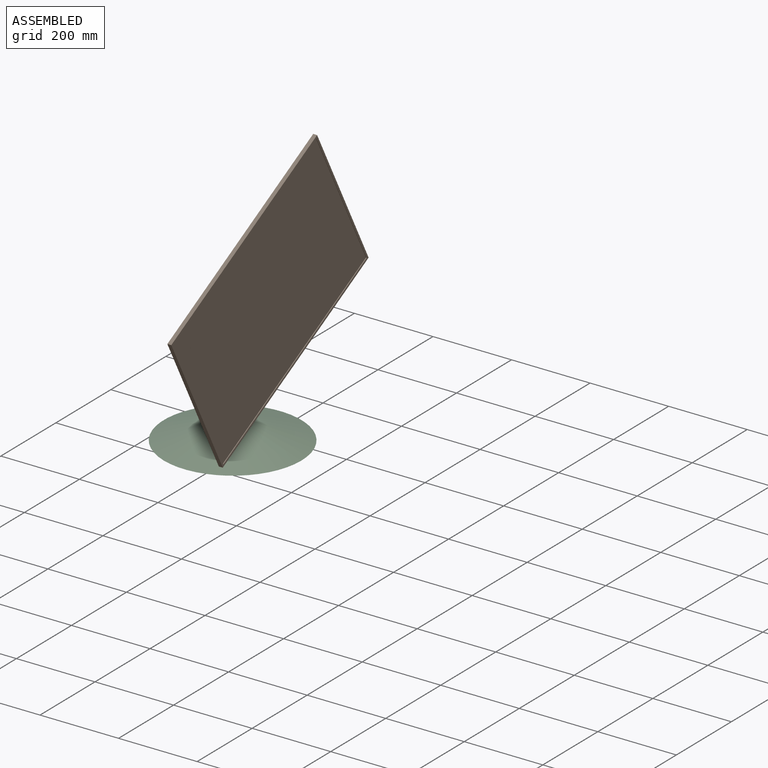
[diagram: assembled view]
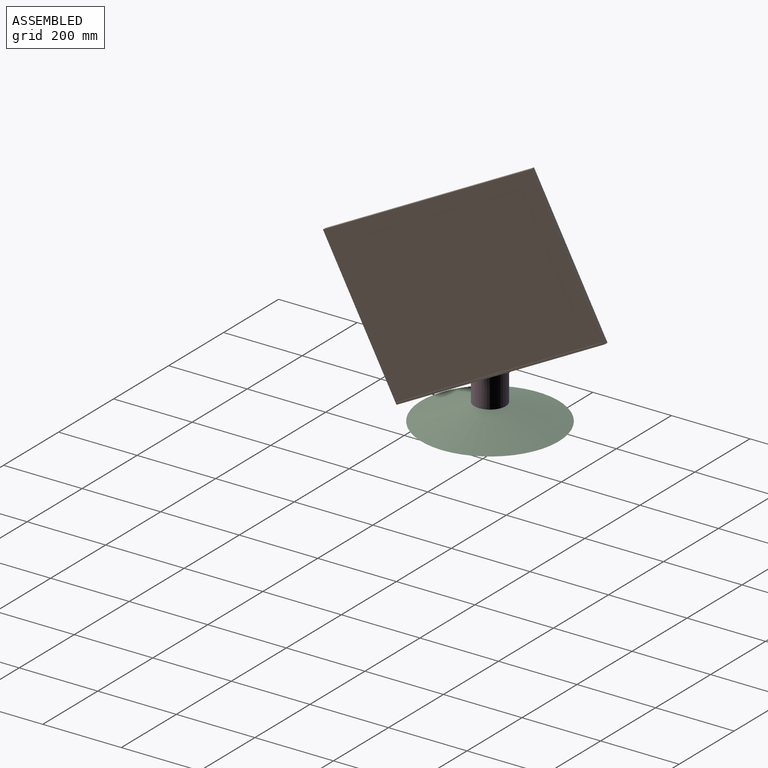
[diagram: assembled view, second angle]
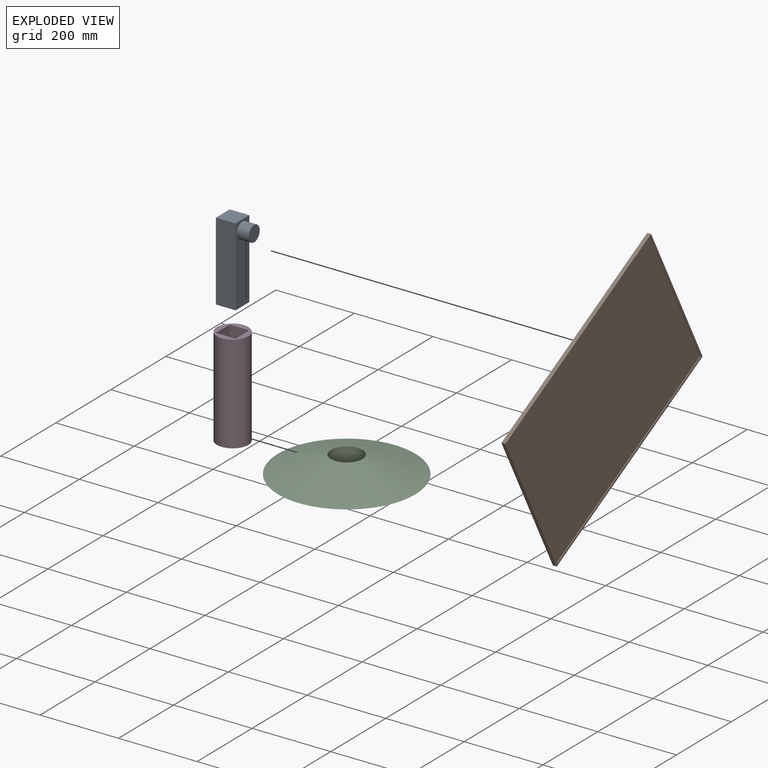
[diagram: exploded view]
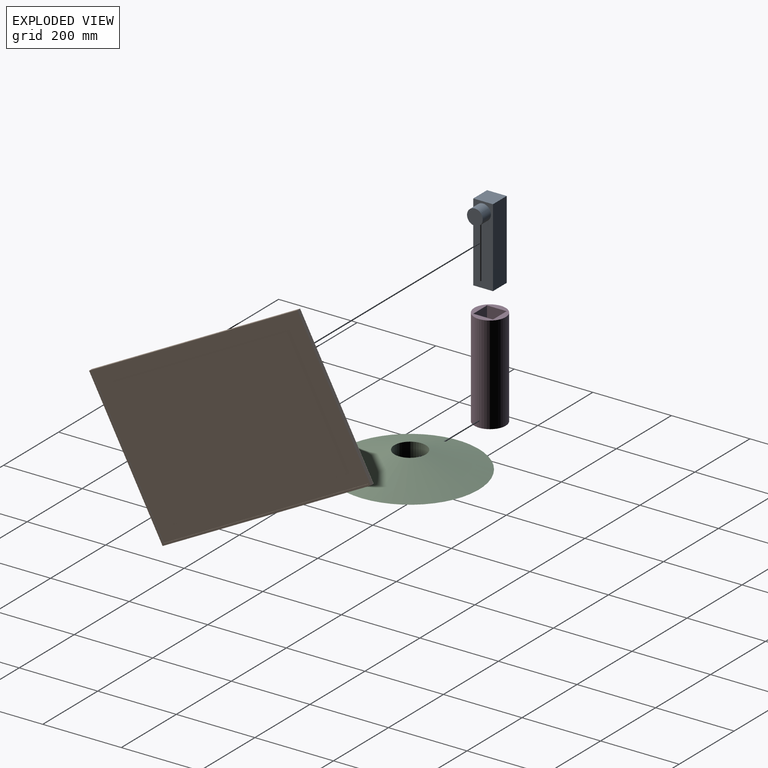
[diagram: exploded view, second angle]
ASSEMBLY  parts=4 mates=3
PART A: 15 faces, bbox 50x80x200 mm
  f0: plane 50x50mm, normal (0,0,-1), area 475mm2, adj f1,f2,f3,f4,f8,f9,f10,f11
  f1: plane 200x50mm, normal (0,1,0), area 10000mm2, adj f0,f2,f4,f5
  f2: plane 200x50mm, normal (-1,0,0), area 10000mm2, adj f0,f1,f3,f5
  f3: plane 200x50mm, normal (0,-1,0), area 8743.4mm2, adj f0,f2,f4,f5,f6
  f4: plane 200x50mm, normal (1,0,0), area 10000mm2, adj f0,f1,f3,f5
  f5: plane 50x50mm, normal (0,0,1), area 2500mm2, adj f1,f2,f3,f4
  f6: cylinder r=20mm len=40mm, axis (0,1,0), area 3769.9mm2, adj f3,f7
  f7: plane 40x40mm, normal (0,-1,0), area 1256.6mm2, adj f6
  f8: plane 197.5x45mm, normal (0,-1,0), area 8887.5mm2, adj f0,f9,f11,f12
  f9: plane 197.5x45mm, normal (1,0,0), area 8887.5mm2, adj f0,f8,f10,f12
  f10: plane 197.5x45mm, normal (0,1,0), area 7925.4mm2, adj f0,f9,f11,f12,f13
  f11: plane 197.5x45mm, normal (-1,0,0), area 8887.5mm2, adj f0,f8,f10,f12
  f12: plane 45x45mm, normal (0,0,-1), area 2025mm2, adj f8,f9,f10,f11
  f13: cylinder r=17.5mm len=35mm, axis (0,1,0), area 3298.7mm2, adj f10,f14
  f14: plane 35x35mm, normal (0,1,0), area 962.1mm2, adj f13
PART B: 108 faces, bbox 600x40x400 mm
  f0: plane 600x400mm, normal (0,1,0), area 211987mm2, adj f1,f2,f3,f4,f18,f22,f23,f27
  f1: plane 600x10mm, normal (0,0,1), area 6000mm2, adj f0,f2,f4,f5
  f2: plane 400x10mm, normal (-1,0,0), area 4000mm2, adj f0,f1,f3,f5
  f3: plane 600x10mm, normal (0,0,-1), area 6000mm2, adj f0,f2,f4,f5
  f4: plane 400x10mm, normal (1,0,0), area 4000mm2, adj f0,f1,f3,f5
  f5: plane 600x400mm, normal (0,-1,0), area 9900mm2, adj f1,f2,f3,f4,f6,f7,f8,f9
  f6: plane 390x2mm, normal (1,0,0), area 780mm2, adj f5,f7,f9,f10
  f7: plane 590x2mm, normal (0,0,1), area 1180mm2, adj f5,f6,f8,f10
  f8: plane 390x2mm, normal (-1,0,0), area 780mm2, adj f5,f7,f9,f10
  f9: plane 590x2mm, normal (0,0,-1), area 1180mm2, adj f5,f6,f8,f10
  f10: plane 590x390mm, normal (0,-1,0), area 230100mm2, adj f6,f7,f8,f9
  f11: plane 90x20mm, normal (1,0,0), area 1800mm2, adj f24,f29,f32,f35
  f12: plane 190x20mm, normal (0,0,-1), area 3800mm2, adj f21,f30,f31,f35
  f13: plane 90x20mm, normal (-1,0,0), area 1800mm2, adj f16,f20,f21,f22
  f14: plane 190x20mm, normal (0,0,1), area 3800mm2, adj f16,f19,f23,f24
  f15: plane 190x90mm, normal (0,1,0), area 15843.4mm2, adj f19,f20,f29,f30,f36
  f16: cylinder r=5mm len=20mm, axis (0,-1,0), area 157.1mm2, adj f13,f14,f17,f18
  f17: sphere r=5mm, area 39.3mm2, adj f16,f19,f20
  f18: torus R=10mm, axis (0,-1,0), area 84.1mm2, adj f0,f16,f22,f23
  f19: cylinder r=5mm len=190mm, axis (-1,0,0), area 1492.3mm2, adj f14,f15,f17,f25
  f20: cylinder r=5mm len=90mm, axis (0,0,-1), area 706.9mm2, adj f13,f15,f17,f26
  f21: cylinder r=5mm len=20mm, axis (0,1,0), area 157.1mm2, adj f12,f13,f26,f27
  f22: cylinder r=5mm len=90mm, axis (0,0,-1), area 706.9mm2, adj f0,f13,f18,f27
  f23: cylinder r=5mm len=190mm, axis (-1,0,0), area 1492.3mm2, adj f0,f14,f18,f28
  f24: cylinder r=5mm len=20mm, axis (0,1,0), area 157.1mm2, adj f11,f14,f25,f28
  f25: sphere r=5mm, area 39.3mm2, adj f19,f24,f29
  f26: sphere r=5mm, area 39.3mm2, adj f20,f21,f30
  f27: torus R=10mm, axis (0,-1,0), area 84.1mm2, adj f0,f21,f22,f31
  f28: torus R=10mm, axis (0,-1,0), area 84.1mm2, adj f0,f23,f24,f32
  f29: cylinder r=5mm len=90mm, axis (0,0,1), area 706.9mm2, adj f11,f15,f25,f33
  f30: cylinder r=5mm len=190mm, axis (1,0,0), area 1492.3mm2, adj f12,f15,f26,f33
  f31: cylinder r=5mm len=190mm, axis (1,0,0), area 1492.3mm2, adj f0,f12,f27,f34
  f32: cylinder r=5mm len=90mm, axis (0,0,1), area 706.9mm2, adj f0,f11,f28,f34
  f33: sphere r=5mm, area 39.3mm2, adj f29,f30,f35
  f34: torus R=10mm, axis (0,-1,0), area 84.1mm2, adj f0,f31,f32,f35
  f35: cylinder r=5mm len=20mm, axis (0,-1,0), area 157.1mm2, adj f11,f12,f33,f34
  f36: cylinder r=20mm len=40mm, axis (0,1,0), area 3769.9mm2, adj f15,f37
  f37: plane 40x40mm, normal (0,1,0), area 1256.6mm2, adj f36
  f38: plane 68.29x3mm, normal (1,0,0), area 204.9mm2, adj f0,f39,f62,f63
  f39: plane 23.83x3mm, normal (0,0,-1), area 71.5mm2, adj f0,f38,f40,f63
  f40: extruded ~17.31x5.14mm, area 55.3mm2, adj f0,f39,f41,f63
  f41: extruded ~14.29x6.19mm, area 48.4mm2, adj f0,f40,f42,f63
  f42: extruded ~16.35x15.56mm, area 75mm2, adj f0,f41,f43,f63
  f43: plane 3x0.46mm, normal (-1,0,0), area 1.4mm2, adj f0,f42,f44,f63
  f44: extruded ~9.89x5.11mm, area 34.1mm2, adj f0,f43,f45,f63
  f45: extruded ~10.03x3.39mm, area 32.5mm2, adj f0,f44,f46,f63
  f46: extruded ~12.84x6.08mm, area 44.5mm2, adj f0,f45,f47,f63
  f47: extruded ~19.66x4.07mm, area 61mm2, adj f0,f46,f62,f63
  f48: plane 22.36x3mm, normal (-1,0,0), area 67.1mm2, adj f49,f60,f63,f65
  f49: plane 11.69x3mm, normal (0,0,-1), area 35.1mm2, adj f48,f50,f63,f65
  f50: extruded ~13.08x3mm, area 40.4mm2, adj f49,f51,f63,f65
  f51: extruded ~8.3x4.11mm, area 29.1mm2, adj f50,f52,f63,f65
  f52: extruded ~8.89x3.69mm, area 30mm2, adj f51,f53,f63,f65
  f53: extruded ~12.11x3mm, area 37.7mm2, adj f52,f60,f63,f65
  f54: plane 13.6x3mm, normal (0,0,-1), area 40.8mm2, adj f55,f61,f63,f64
  f55: extruded ~13x3mm, area 40.6mm2, adj f54,f56,f63,f64
  f56: extruded ~9.34x4.28mm, area 32.1mm2, adj f55,f57,f63,f64
  f57: extruded ~10.03x4.18mm, area 33.8mm2, adj f56,f58,f63,f64
  f58: extruded ~12.44x3.2mm, area 39.2mm2, adj f57,f59,f63,f64
  f59: plane 14.26x3mm, normal (0,0,1), area 42.8mm2, adj f58,f61,f63,f64
  f60: plane 13.08x3mm, normal (0,0,1), area 39.2mm2, adj f48,f53,f63,f65
  f61: plane 25.56x3mm, normal (-1,0,0), area 76.7mm2, adj f54,f59,f63,f64
  f62: plane 19.3x3mm, normal (0,0,1), area 57.9mm2, adj f0,f38,f47,f63
  f63: plane 68.29x47.32mm, normal (0,1,0), area 1590.5mm2, adj f38,f39,f40,f41,f42,f43,f44,f45
  f64: plane 30.88x25.56mm, normal (0,1,0), area 719mm2, adj f54,f55,f56,f57,f58,f59,f61
  f65: plane 28.88x22.36mm, normal (0,1,0), area 590.1mm2, adj f48,f49,f50,f51,f52,f53,f60
  f66: extruded ~11.39x4.04mm, area 37.1mm2, adj f0,f67,f90,f91
  f67: extruded ~14.78x8.22mm, area 51.2mm2, adj f0,f66,f68,f91
  f68: extruded ~9.51x4.18mm, area 31.2mm2, adj f0,f67,f69,f91
  f69: extruded ~4.42x4.16mm, area 18.4mm2, adj f0,f68,f70,f91
  f70: extruded ~5.81x3mm, area 18.1mm2, adj f0,f69,f71,f91
  f71: extruded ~7.52x3.55mm, area 25.9mm2, adj f0,f70,f72,f91
  f72: extruded ~9.86x3mm, area 31.2mm2, adj f0,f71,f73,f91
  f73: extruded ~16.44x3.54mm, area 50.8mm2, adj f0,f72,f74,f91
  f74: plane 6.91x3mm, normal (-0.94,0,-0.34), area 22mm2, adj f0,f73,f75,f91
  f75: extruded ~18.73x3.74mm, area 57.7mm2, adj f0,f74,f76,f91
  f76: extruded ~15.7x4.67mm, area 50.1mm2, adj f0,f75,f77,f91
  f77: extruded ~12.56x5.93mm, area 43.3mm2, adj f0,f76,f78,f91
  f78: extruded ~12.19x4.09mm, area 39.4mm2, adj f0,f77,f79,f91
  f79: extruded ~13.61x8.08mm, area 48mm2, adj f0,f78,f80,f91
  f80: extruded ~10.16x4.34mm, area 33.2mm2, adj f0,f79,f81,f91
  f81: extruded ~4.77x4.19mm, area 19.2mm2, adj f0,f80,f82,f91
  f82: extruded ~5.81x3mm, area 18.2mm2, adj f0,f81,f83,f91
  f83: extruded ~8.39x4.02mm, area 29mm2, adj f0,f82,f84,f91
  f84: extruded ~11.96x3.01mm, area 37.6mm2, adj f0,f83,f85,f91
  f85: extruded ~9.81x3mm, area 29.6mm2, adj f0,f84,f86,f91
  f86: extruded ~9.16x3mm, area 28.8mm2, adj f0,f85,f87,f91
  f87: plane 7.65x3mm, normal (1,0,0), area 23mm2, adj f0,f86,f88,f91
  f88: extruded ~18.68x3.14mm, area 57.3mm2, adj f0,f87,f89,f91
  f89: extruded ~17.75x5.05mm, area 56.4mm2, adj f0,f88,f90,f91
  f90: extruded ~14.07x6.54mm, area 48.3mm2, adj f0,f66,f89,f91
  f91: plane 70.21x42.97mm, normal (0,1,0), area 1079.5mm2, adj f66,f67,f68,f69,f70,f71,f72,f73
  f92: extruded ~15.52x3.63mm, area 48.2mm2, adj f0,f93,f106,f107
  f93: plane 6.82x3.36mm, normal (-0.9,0,-0.44), area 22.8mm2, adj f0,f92,f94,f107
  f94: extruded ~18.77x3.92mm, area 58mm2, adj f0,f93,f95,f107
  f95: extruded ~17.54x4.3mm, area 54.8mm2, adj f0,f94,f96,f107
  f96: extruded ~12.23x11.4mm, area 50.9mm2, adj f0,f95,f97,f107
  f97: extruded ~18.49x3.95mm, area 57.2mm2, adj f0,f96,f98,f107
  f98: extruded ~26.02x8.2mm, area 83.7mm2, adj f0,f97,f99,f107
  f99: extruded ~23.28x9.16mm, area 77.4mm2, adj f0,f98,f100,f107
  f100: extruded ~17.52x3mm, area 53.4mm2, adj f0,f99,f101,f107
  f101: plane 6.95x3mm, normal (-1,0,0), area 20.9mm2, adj f0,f100,f102,f107
  f102: extruded ~16.31x3mm, area 49.7mm2, adj f0,f101,f103,f107
  f103: extruded ~17.91x7.32mm, area 60mm2, adj f0,f102,f104,f107
  f104: extruded ~20.71x6.29mm, area 66.3mm2, adj f0,f103,f105,f107
  f105: extruded ~20.53x6.52mm, area 66.1mm2, adj f0,f104,f106,f107
  f106: extruded ~17.77x7.5mm, area 59.8mm2, adj f0,f92,f105,f107
  f107: plane 70.21x51.66mm, normal (0,1,0), area 1019.9mm2, adj f92,f93,f94,f95,f96,f97,f98,f99
PART C: 3 faces, bbox 350x350x45 mm
  f0: plane 350x350mm, normal (0,0,-1), area 91184.7mm2, adj f1,f2
  f1: cone r=175mm half-angle=71.6deg, axis (0,0,-1), area 96117.1mm2, adj f0,f2
  f2: cylinder r=40mm len=80mm, axis (0,0,1), area 11309.7mm2, adj f0,f1
PART D: 8 faces, bbox 80x80x250 mm
  f0: cylinder r=40mm len=250mm, axis (0,0,-1), area 62831.9mm2, adj f1,f2
  f1: plane 80x80mm, normal (0,0,1), area 2526.5mm2, adj f0,f3,f4,f5,f6
  f2: plane 80x80mm, normal (0,0,-1), area 5026.5mm2, adj f0
  f3: plane 100x50mm, normal (1,0,0), area 5000mm2, adj f1,f4,f6,f7
  f4: plane 100x50mm, normal (0,1,0), area 5000mm2, adj f1,f3,f5,f7
  f5: plane 100x50mm, normal (-1,0,0), area 5000mm2, adj f1,f4,f6,f7
  f6: plane 100x50mm, normal (0,-1,0), area 5000mm2, adj f1,f3,f5,f7
  f7: plane 50x50mm, normal (0,0,1), area 2500mm2, adj f3,f4,f5,f6
PLACE A rot(axis=(0,0,1),90deg) t=(12.98,167.53,30.33)mm
PLACE B rot(axis=(0.23,-0.23,0.94),93.3deg) t=(97.98,167.53,205.33)mm
PLACE C t=(12.98,167.53,-139.67)mm fixed
PLACE D rot(axis=(0,0,1),0deg) t=(12.98,167.53,-139.67)mm
MATE revolute D.f0 <-> C.f1  axis (0,0,-1) through (12.98,167.53,-139.67)mm
MATE revolute B.f36 <-> A.f6  axis (-1,0,0) through (67.98,167.53,205.33)mm
MATE slider A.f0 <-> D.f1  axis (0,0,1) through (37.98,192.53,30.33)mm
